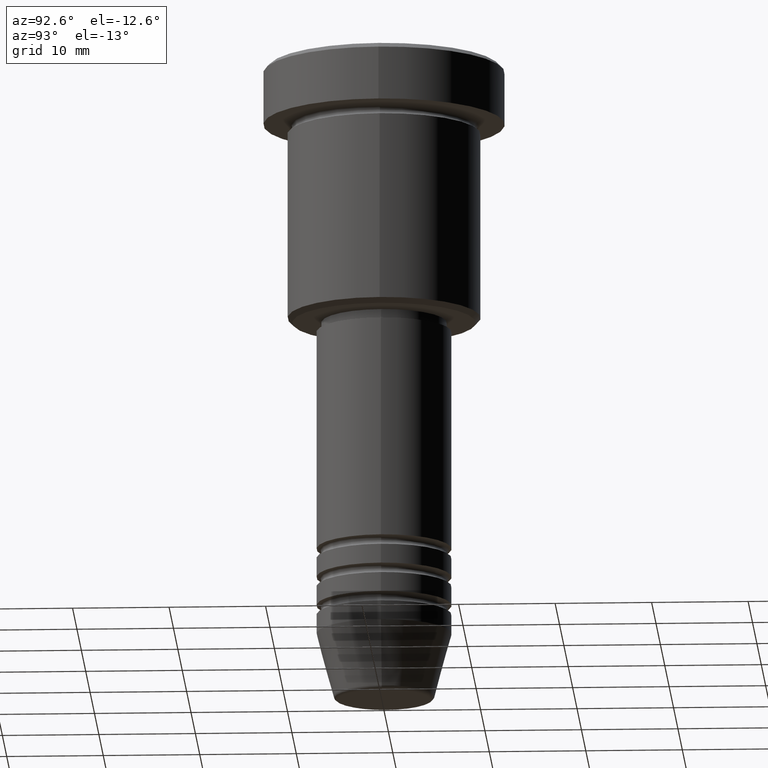
[diagram: clean part render]
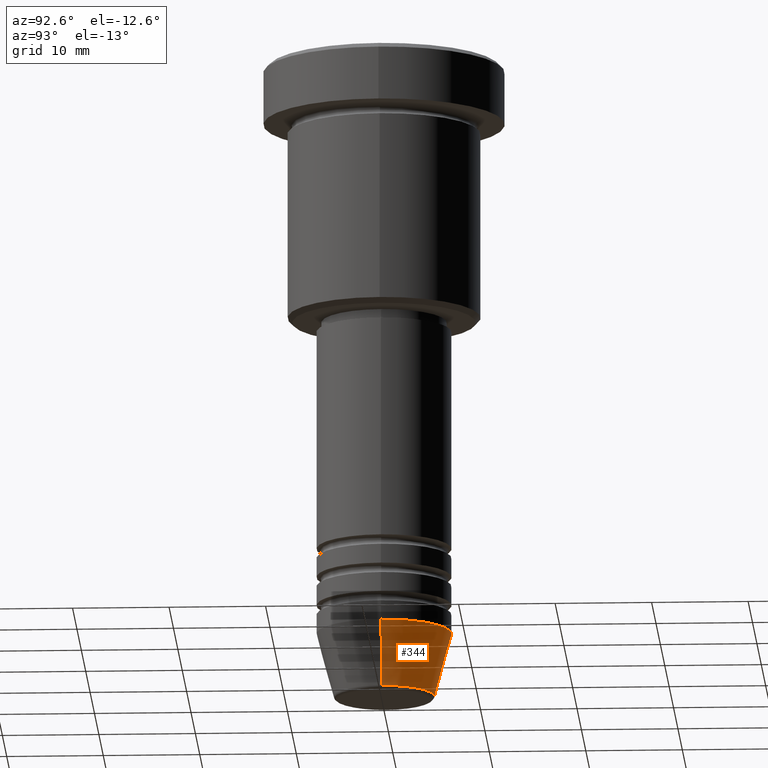
[diagram: same view with one face highlighted and labeled with its STEP entity id]
A machine part, auxiliary view. The second image highlights one B-rep face of the part: STEP entity #344.
In plain terms, the highlighted conical surface has half-angle 15 deg.
Its self-contained STEP definition (entity closure, byte-faithful):
#14 = ORIENTED_EDGE ( 'NONE', *, *, #447, .F. ) ;
#58 = VERTEX_POINT ( 'NONE', #155 ) ;
#155 = CARTESIAN_POINT ( 'NONE',  ( -5.223655072137187716, 7.484830028987059188E-16, -66.62940952255127058 ) ) ;
#167 = DIRECTION ( 'NONE',  ( -0.000000000000000000, -0.000000000000000000, 1.000000000000000000 ) ) ;
#207 = CARTESIAN_POINT ( 'NONE',  ( 7.000000000000000000, 0.000000000000000000, -60.00000000000000000 ) ) ;
#215 = CARTESIAN_POINT ( 'NONE',  ( -7.000000000000000000, 8.572527594031473190E-16, -60.00000000000000000 ) ) ;
#247 = LINE ( 'NONE', #794, #255 ) ;
#255 = VECTOR ( 'NONE', #886, 1000.000000000000000 ) ;
#268 = EDGE_LOOP ( 'NONE', ( #1054, #640, #14, #501 ) ) ;
#344 = ADVANCED_FACE ( 'NONE', ( #1135 ), #756, .T. ) ;
#347 = VECTOR ( 'NONE', #509, 1000.000000000000000 ) ;
#421 = DIRECTION ( 'NONE',  ( 1.000000000000000000, 0.000000000000000000, 0.000000000000000000 ) ) ;
#423 = CIRCLE ( 'NONE', #1011, 7.000000000000000000 ) ;
#447 = EDGE_CURVE ( 'NONE', #1085, #1133, #423, .T. ) ;
#485 = EDGE_CURVE ( 'NONE', #834, #1085, #1149, .T. ) ;
#493 = DIRECTION ( 'NONE',  ( 1.000000000000000000, 0.000000000000000000, 0.000000000000000000 ) ) ;
#496 = EDGE_CURVE ( 'NONE', #834, #58, #934, .T. ) ;
#501 = ORIENTED_EDGE ( 'NONE', *, *, #485, .F. ) ;
#509 = DIRECTION ( 'NONE',  ( 0.2588190451025214056, 0.000000000000000000, 0.9659258262890680902 ) ) ;
#640 = ORIENTED_EDGE ( 'NONE', *, *, #752, .T. ) ;
#659 = DIRECTION ( 'NONE',  ( -0.000000000000000000, -0.000000000000000000, 1.000000000000000000 ) ) ;
#703 = AXIS2_PLACEMENT_3D ( 'NONE', #937, #659, #493 ) ;
#752 = EDGE_CURVE ( 'NONE', #58, #1133, #247, .T. ) ;
#756 = CONICAL_SURFACE ( 'NONE', #703, 7.000000000000000000, 0.2617993877991501295 ) ;
#792 = CARTESIAN_POINT ( 'NONE',  ( 7.000000000000000000, 0.000000000000000000, -60.00000000000000000 ) ) ;
#794 = CARTESIAN_POINT ( 'NONE',  ( -7.000000000000000000, 8.572527594031473190E-16, -60.00000000000000000 ) ) ;
#798 = DIRECTION ( 'NONE',  ( -0.000000000000000000, -0.000000000000000000, 1.000000000000000000 ) ) ;
#834 = VERTEX_POINT ( 'NONE', #860 ) ;
#860 = CARTESIAN_POINT ( 'NONE',  ( 5.223655072137187716, 0.000000000000000000, -66.62940952255127058 ) ) ;
#866 = CARTESIAN_POINT ( 'NONE',  ( 0.000000000000000000, 0.000000000000000000, -60.00000000000000000 ) ) ;
#886 = DIRECTION ( 'NONE',  ( -0.2588190451025214056, 3.169619151431772953E-17, 0.9659258262890680902 ) ) ;
#934 = CIRCLE ( 'NONE', #1047, 5.223655072137187716 ) ;
#937 = CARTESIAN_POINT ( 'NONE',  ( 0.000000000000000000, 0.000000000000000000, -60.00000000000000000 ) ) ;
#1011 = AXIS2_PLACEMENT_3D ( 'NONE', #866, #798, #421 ) ;
#1047 = AXIS2_PLACEMENT_3D ( 'NONE', #1169, #167, #1062 ) ;
#1054 = ORIENTED_EDGE ( 'NONE', *, *, #496, .T. ) ;
#1062 = DIRECTION ( 'NONE',  ( 1.000000000000000000, 0.000000000000000000, 0.000000000000000000 ) ) ;
#1085 = VERTEX_POINT ( 'NONE', #207 ) ;
#1133 = VERTEX_POINT ( 'NONE', #215 ) ;
#1135 = FACE_OUTER_BOUND ( 'NONE', #268, .T. ) ;
#1149 = LINE ( 'NONE', #792, #347 ) ;
#1169 = CARTESIAN_POINT ( 'NONE',  ( 0.000000000000000000, 0.000000000000000000, -66.62940952255127058 ) ) ;